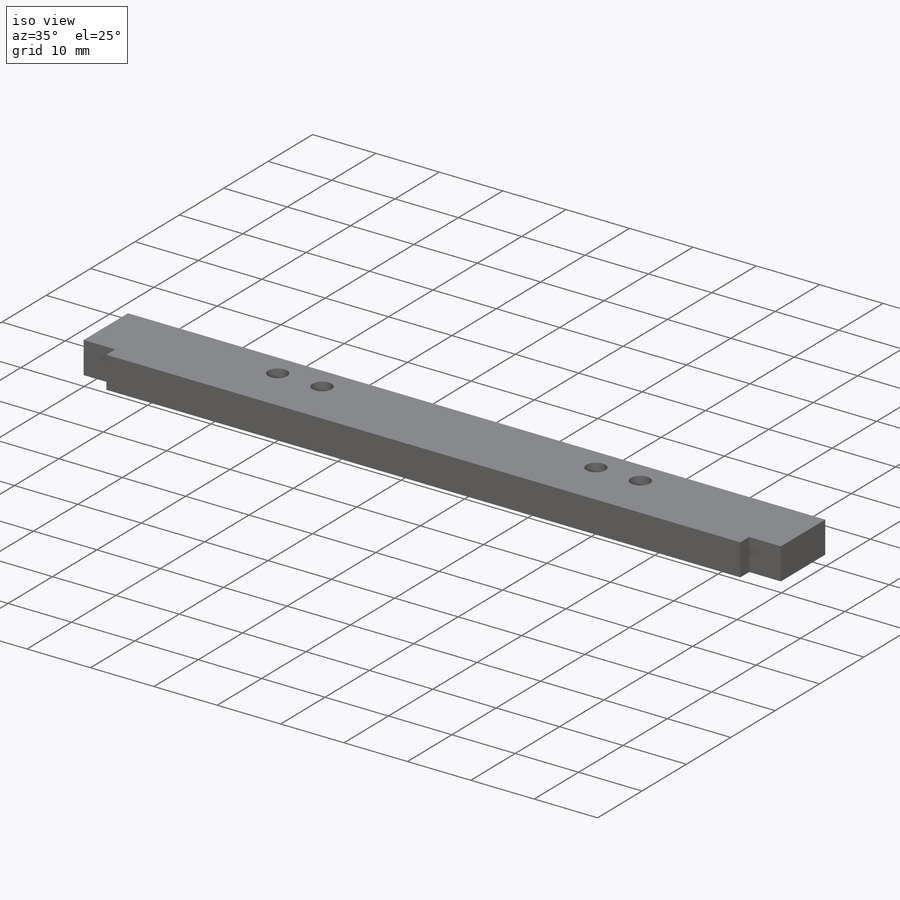
[diagram: iso view]
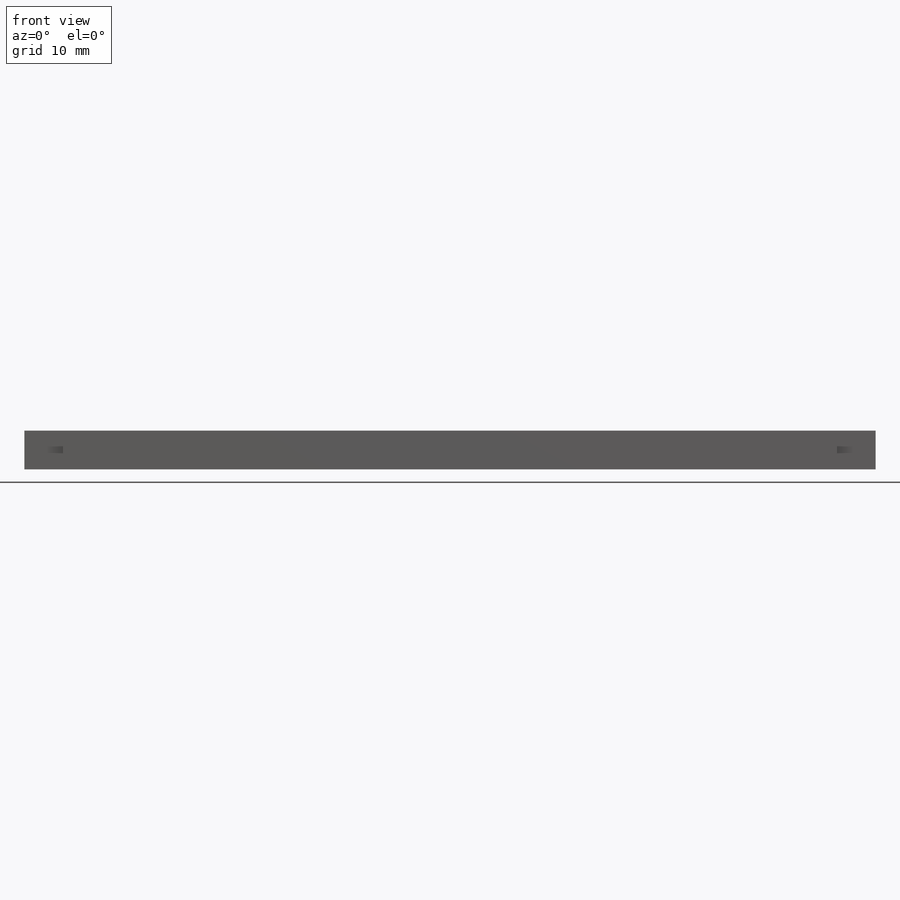
[diagram: front view]
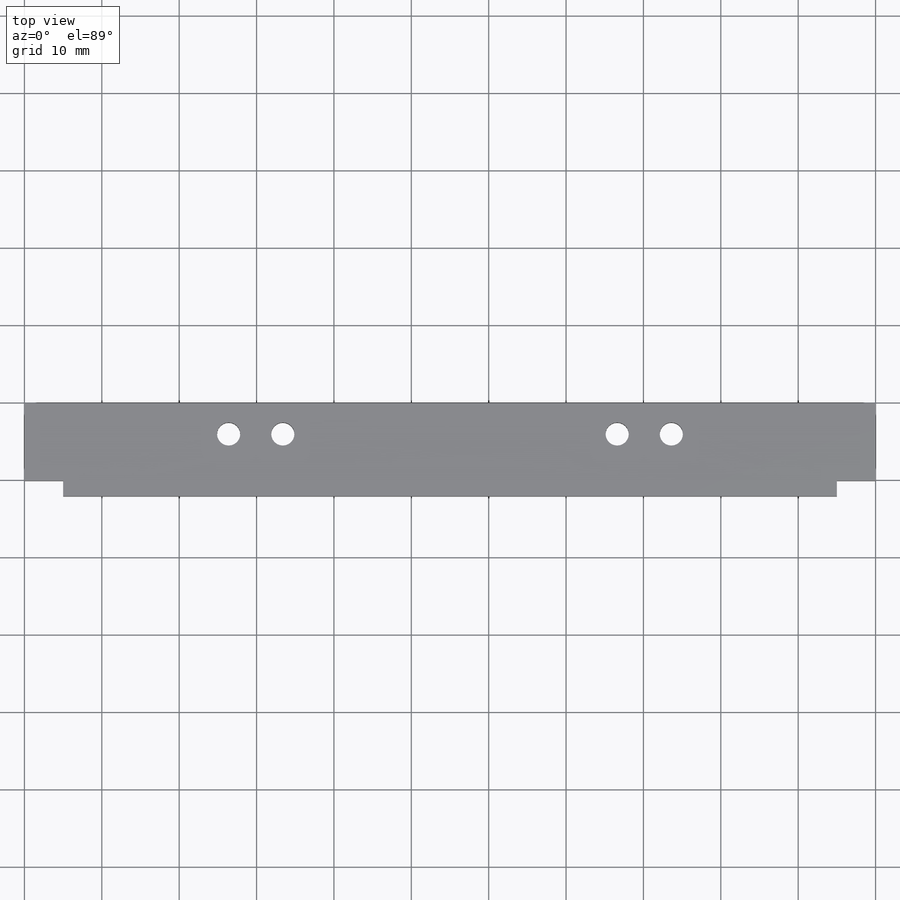
[diagram: top view]
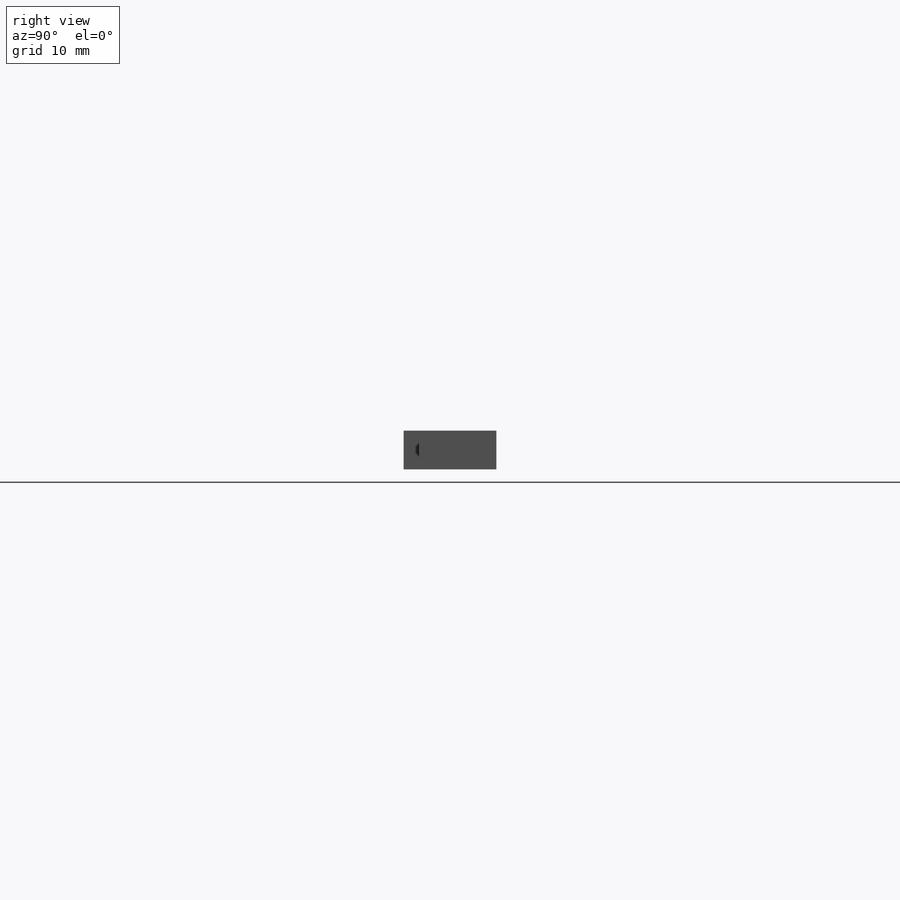
[diagram: right view]
SOLIDWORKS PART (.sldprt)
format: sldprt  version: not decoded by parser v0  size: 403,456 bytes
history: native  units: mm
features: sketch x18, plane x4, mirror x4, extrude x2, hole x2, cut_extrude x2, material x1, chamfer x1 (+12 scaffold rows collapsed)
feature tree (46):
  scaffold x12  (default folders/planes/origin — collapsed)
  material  "Material <not specified>"
  sketch  "Sketch1"  dims[D1=27.0mm D2=5.0mm]
  extrude  "Boss-Extrude1"  Depth=110mm
  sketch  "Sketch2"  dims[D1=5.0mm D2=2.5mm]
  sketch  "Sketch5"
  sketch  "Sketch6"  dims[D1=5.0mm D2=2.0mm]
  sketch  "Sketch7"
  sketch  "Sketch8"
  plane  "Plane3"
  sketch  "Sketch13"  dims[D1=3.5mm D2=3.5mm]
  hole  "M3 Tapped Hole1"  Diameter=2.5mm Depth=7.5mm
  sketch  "3DSketch2"
  sketch  "Sketch14"  dims[hole-wizard template sketch: 29 standard entries collapsed; hole parameters kept: c8.Tap Drill Depth=7.5mm c8.Thread Major Dia.=3.0mm c8.Thread Depth=6.0mm c8.D5=~14.816244mm c8.Drill Angle=118.0deg]
  plane  "Plane4"
  mirror  "Mirror3"
  cut_extrude  "Cut-Extrude1"  Depth=10mm
  mirror  "Mirror4"
  sketch  "Sketch17"  dims[c1.D4=~1.787976mm c1.D1=5.0mm c1.D2=7.5mm c1.D3=1.75mm c2.D4=1.75mm c2.D5=7.5mm c2.D2=1.75mm c3.D4=1.79mm c3.D5=1.79mm c3.D2=1.5mm c3.D6=~1.393815mm c4.D2=3.0mm c4.D4=3.0mm]
  extrude  "Boss-Extrude2"  Depth=5mm
  sketch  "Sketch18"
  sketch  "Sketch19"
  plane  "Plane5"
  sketch  "Sketch20"
  sketch  "Sketch21"  dims[c1.D1=~1.72327mm c1.D2=1.8mm c2.D1=5.0mm]
  sketch  "Sketch22"  dims[D4=1.8mm D1=1.8mm D2=1.8mm D3=4.0mm]
  cut_extrude  "Cut-Extrude3"  Depth=10mm
  plane  "Plane6"
  chamfer  "Chamfer1"  Distance=3mm Angle=45deg
  mirror  "Mirror8"
  sketch  "Sketch23"
  hole  "Ø3.0mm Dowel Hole1"  Diameter=3mm Depth=20mm
  sketch  "Sketch25"  dims[D1=6.25mm]
  sketch  "Sketch24"  dims[hole-wizard template sketch: 49 standard entries collapsed; hole parameters kept: c15.Drill Angle=118.0deg]
  mirror  "Mirror9"
decode coverage: 17 of 29 modeling features carry decoded parameters
note: ~ marks probable driven/reference dimensions
note: suppression state not decoded; provenance and decode notes live in map.json
